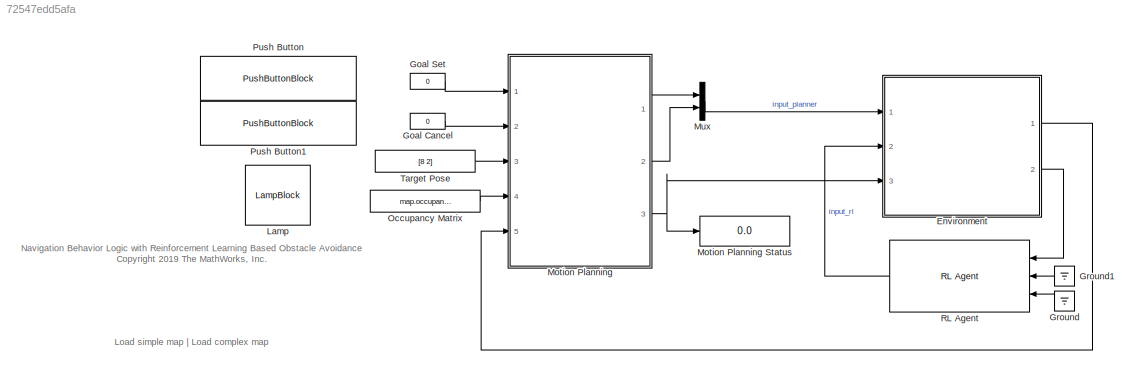
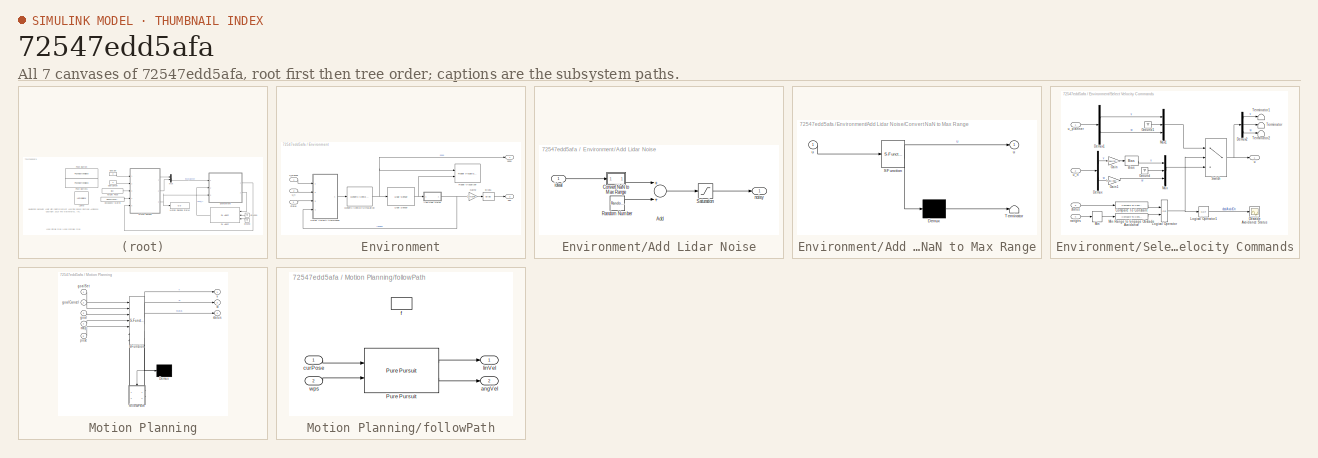
[diagram: thumbnail index - all 7 canvases of the model, root first then tree order]
MODEL slx_72547edd5afa
KIND model
CONFIG AbsTol = auto
CONFIG EnableMultiTasking = off
CONFIG FixedStep = auto
CONFIG InitFcn = close all;\nclear showPath;\nlidarNoiseSeeds = randi(intmax,size(scanAngles));
CONFIG MaxStep = auto
CONFIG MinStep = auto
CONFIG PreLoadFcn = rlMobileRobotParams;
CONFIG RelTol = 1e-3
CONFIG SampleTimeConstraint = Unconstrained
CONFIG Solver = ode23t
CONFIG SolverName = ode23t
CONFIG StartTime = 0.0
CONFIG StopTime = inf
WORKSPACE source: mxarray member
WORKSPACE mapForSim: object (value not decoded)
WORKSPACE occGrid: robotics.BinaryOccupancyGrid (value not decoded)
BLOCK [SubSystem] Environment
  Ports = [3, 2]
  RequestExecContextInheritance = off
BLOCK [SubSystem] Environment/Add Lidar Noise
  Ports = [1, 1]
  RequestExecContextInheritance = off
BLOCK [Sum] Environment/Add Lidar Noise/Add
  InputSameDT = off
  OutDataTypeStr = Inherit: Inherit via internal rule
  Ports = [2, 1]
  SaturateOnIntegerOverflow = off
BLOCK [SubSystem] Environment/Add Lidar Noise/Convert NaN to Max Range
  ErrorFcn = Stateflow.Translate.translate
  PermitHierarchicalResolution = ExplicitOnly
  Ports = [1, 1]
  RequestExecContextInheritance = off
  SFBlockType = MATLAB Function
  TreatAsAtomicUnit = on
BLOCK [Demux] Environment/Add Lidar Noise/Convert NaN to Max Range/ Demux 
  Outputs = 1
  Ports = [1, 1]
BLOCK [S-Function] Environment/Add Lidar Noise/Convert NaN to Max Range/ SFunction 
  EnableBusSupport = on
  FunctionName = sf_sfun
  Parameters = maxRange
  PortCounts = [1 2]
  Ports = [1, 2]
  SFcnIsStateOwnerBlock = off
  SFunctionDeploymentMode = off
  Tag = Stateflow S-Function 2
BLOCK [Terminator] Environment/Add Lidar Noise/Convert NaN to Max Range/ Terminator 
BLOCK [Outport] Environment/Add Lidar Noise/Convert NaN to Max Range/u
  IconDisplay = Port number
  VectorParamsAs1DForOutWhenUnconnected = off
BLOCK [Inport] Environment/Add Lidar Noise/Convert NaN to Max Range/u 
  IconDisplay = Port number
BLOCK [RandomNumber] Environment/Add Lidar Noise/Random Number
  SampleTime = sampleTime
  Seed = lidarNoiseSeeds
  Variance = lidarNoiseVariance
BLOCK [Saturate] Environment/Add Lidar Noise/Saturation
  InputPortMap = u0
  LowerLimit = 0
  Ports = [1, 1]
  UpperLimit = inf
BLOCK [Inport] Environment/Add Lidar Noise/ideal
  IconDisplay = Port number
BLOCK [Outport] Environment/Add Lidar Noise/noisy
  IconDisplay = Port number
BLOCK [Bias] Environment/Bias1
  Bias = -1
  SaturateOnIntegerOverflow = off
BLOCK [Gain] Environment/Gain2
  Gain = 2/maxRange
  OutDataTypeStr = Inherit: Inherit via internal rule
  ParamDataTypeStr = Inherit: Inherit via internal rule
  SaturateOnIntegerOverflow = off
BLOCK [Reference] Environment/Generic Vehicle Simulation  REF=mobileRoboticsLib/Utilities/Generic Vehicle Simulation
  Ports = [1, 1]
  SourceBlock = mobileRoboticsLib/Utilities/Generic Vehicle Simulation
  SourceProductName = Mobile Robotics Simulation Library
  SourceType = Generic Vehicle Simulation
BLOCK [Reference] Environment/Lidar Sensor  REF=mobileRoboticsLib/Environments/Lidar Sensor
  Ports = [1, 1]
  SourceBlock = mobileRoboticsLib/Environments/Lidar Sensor
  SourceProductName = Ground Vehicles Library
  SourceType = LidarSensor
BLOCK [Reference] Environment/Robot Visualizer  REF=mobileRoboticsLib/Environments/Robot Visualizer
  Ports = [2]
  Priority = 99
  SourceBlock = mobileRoboticsLib/Environments/Robot Visualizer
  SourceProductName = Ground Vehicles Library
  SourceType = Visualizer2D
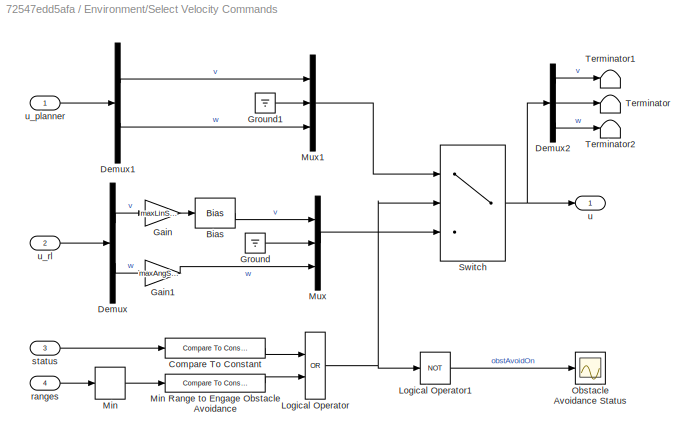
BLOCK [SubSystem] Environment/Select Velocity Commands
  Ports = [4, 1]
  RequestExecContextInheritance = off
BLOCK [Bias] Environment/Select Velocity Commands/Bias
  Bias = maxLinSpeed/2
  SaturateOnIntegerOverflow = off
BLOCK [Reference] Environment/Select Velocity Commands/Compare To Constant  REF=simulink/Logic and Bit
Operations/Compare
To Constant
  Ports = [1, 1]
  SourceBlock = simulink/Logic and Bit\nOperations/Compare\nTo Constant
  SourceProductBaseCode = SL
  SourceProductName = Simulink
  SourceType = Compare To Constant
BLOCK [Demux] Environment/Select Velocity Commands/Demux
  DisplayOption = bar
  Outputs = 2
  Ports = [1, 2]
BLOCK [Demux] Environment/Select Velocity Commands/Demux1
  DisplayOption = bar
  Outputs = 2
  Ports = [1, 2]
BLOCK [Demux] Environment/Select Velocity Commands/Demux2
  DisplayOption = bar
  Outputs = 3
  Ports = [1, 3]
BLOCK [Gain] Environment/Select Velocity Commands/Gain
  Gain = maxLinSpeed/2
  OutDataTypeStr = Inherit: Inherit via internal rule
  ParamDataTypeStr = Inherit: Inherit via internal rule
  SaturateOnIntegerOverflow = off
BLOCK [Gain] Environment/Select Velocity Commands/Gain1
  Gain = maxAngSpeed
  OutDataTypeStr = Inherit: Inherit via internal rule
  ParamDataTypeStr = Inherit: Inherit via internal rule
  SaturateOnIntegerOverflow = off
BLOCK [Ground] Environment/Select Velocity Commands/Ground
BLOCK [Ground] Environment/Select Velocity Commands/Ground1
BLOCK [Logic] Environment/Select Velocity Commands/Logical Operator
  AllPortsSameDT = off
  Operator = OR
  OutDataTypeStr = boolean
  Ports = [2, 1]
BLOCK [Logic] Environment/Select Velocity Commands/Logical Operator1
  AllPortsSameDT = off
  Operator = NOT
  OutDataTypeStr = boolean
  Ports = [1, 1]
BLOCK [MinMax] Environment/Select Velocity Commands/Min
  InputSameDT = off
  Ports = [1, 1]
  SaturateOnIntegerOverflow = off
BLOCK [Reference] Environment/Select Velocity Commands/Min Range to Engage Obstacle Avoidance  REF=simulink/Logic and Bit
Operations/Compare
To Constant
  Ports = [1, 1]
  SourceBlock = simulink/Logic and Bit\nOperations/Compare\nTo Constant
  SourceProductBaseCode = SL
  SourceProductName = Simulink
  SourceType = Compare To Constant
BLOCK [Mux] Environment/Select Velocity Commands/Mux
  DisplayOption = bar
  Inputs = 3
  Ports = [3, 1]
BLOCK [Mux] Environment/Select Velocity Commands/Mux1
  DisplayOption = bar
  Inputs = 3
  Ports = [3, 1]
BLOCK [Scope] Environment/Select Velocity Commands/Obstacle Avoidance Status
  Floating = off
  NumInputPorts = 1
  Ports = [1]
  ScopeSpecificationString = Simulink.scopes.TimeScopeBlockCfg('CurrentConfiguration', extmgr.ConfigurationSet(extmgr.Configuration('Core','General UI',true),extmgr.Configuration('Core','Source UI',true),extmgr.Configuration('Sources','WiredSimulink',true),extmgr.Configuration('Visuals','Time Domain',true,'SerializedDisplays',{struct('MinYLimReal','-0.2','MaxYLimReal','1.2','YLabelReal','','MinYLimMag','0','MaxYLimMag','10','...<+1345ch>
BLOCK [Switch] Environment/Select Velocity Commands/Switch
  Criteria = u2 ~= 0
  InputSameDT = off
  SaturateOnIntegerOverflow = off
  Threshold = 1
BLOCK [Terminator] Environment/Select Velocity Commands/Terminator
BLOCK [Terminator] Environment/Select Velocity Commands/Terminator1
BLOCK [Terminator] Environment/Select Velocity Commands/Terminator2
BLOCK [Inport] Environment/Select Velocity Commands/ranges
  IconDisplay = Port number
  Port = 4
BLOCK [Inport] Environment/Select Velocity Commands/status
  IconDisplay = Port number
  Port = 3
BLOCK [Outport] Environment/Select Velocity Commands/u
  IconDisplay = Port number
BLOCK [Inport] Environment/Select Velocity Commands/u_planner
  IconDisplay = Port number
BLOCK [Inport] Environment/Select Velocity Commands/u_rl
  IconDisplay = Port number
  Port = 2
BLOCK [Outport] Environment/obs
  IconDisplay = Port number
  Port = 2
  VectorParamsAs1DForOutWhenUnconnected = off
BLOCK [Outport] Environment/pose
  IconDisplay = Port number
  VectorParamsAs1DForOutWhenUnconnected = off
BLOCK [Inport] Environment/status
  IconDisplay = Port number
  Port = 3
BLOCK [Inport] Environment/u_planner
  IconDisplay = Port number
BLOCK [Inport] Environment/u_rl
  IconDisplay = Port number
  Port = 2
BLOCK [Constant] Goal Cancel
  Value = 0
BLOCK [Constant] Goal Set
  Value = 0
BLOCK [Ground] Ground
BLOCK [Ground] Ground1
BLOCK [LampBlock] Lamp
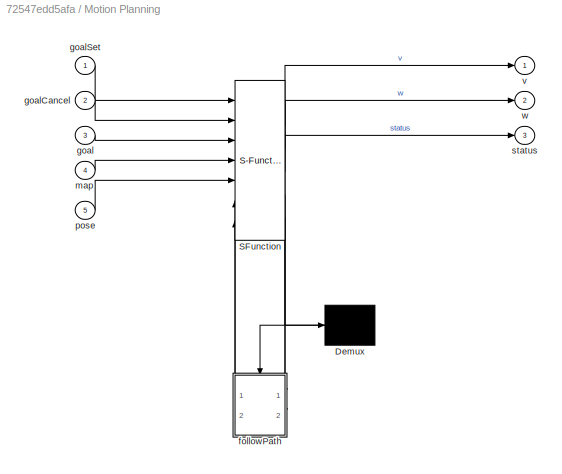
BLOCK [SubSystem] Motion Planning
  BlockKeywords = __PRM__SERIALIZED__DATA__:Stateflow Chart,Stateflow Diagram
  ErrorFcn = Stateflow.Translate.translate
  PermitHierarchicalResolution = ExplicitOnly
  Ports = [5, 3]
  RequestExecContextInheritance = off
  SFBlockType = Chart
  TreatAsAtomicUnit = on
BLOCK [Display] Motion Planning Status
  Decimation = 1
  Ports = [1]
BLOCK [Demux] Motion Planning/ Demux 
  Outputs = 1
  Ports = [1, 1]
BLOCK [S-Function] Motion Planning/ SFunction 
  EnableBusSupport = on
  FunctionName = sf_sfun
  Parameters = goalCheckDistance,prmConnectionDistance,prmNumNodes
  PortCounts = [7 6]
  Ports = [7, 6]
  SFcnIsStateOwnerBlock = off
  SFunctionDeploymentMode = off
  Tag = Stateflow S-Function 3
BLOCK [SubSystem] Motion Planning/followPath
  Ports = [2, 2, 0, 1]
  PreDeleteFcn = Stateflow.SLINSF.SimulinkMan.removePreDeleteFcn
  RequestExecContextInheritance = off
  UndoDeleteFcn = Stateflow.SLINSF.SimulinkMan.restorePreDeleteFcn
BLOCK [Reference] Motion Planning/followPath/Pure Pursuit  REF=robotalgslib/Pure Pursuit
  Ports = [2, 2]
  SourceBlock = robotalgslib/Pure Pursuit
  SourceProductBaseCode = RO
  SourceProductName = Robotics System Toolbox
  SourceType = nav.slalgs.internal.PurePursuit
BLOCK [Outport] Motion Planning/followPath/angVel
  IconDisplay = Port number
  Port = 2
BLOCK [Inport] Motion Planning/followPath/curPose
  IconDisplay = Port number
  OutDataTypeStr = double
  PortDimensions = 3
  SignalType = real
  VarSizeSig = No
BLOCK [TriggerPort] Motion Planning/followPath/f
  CopyFcn = Stateflow.SLINSF.SimulinkMan.removeBlockPreDeleteFcn
  Ports = []
  PreDeleteFcn = Stateflow.SLINSF.SimulinkMan.unsafePredeleteFcn
  StatesWhenEnabling = held
  TriggerType = function-call
  VariantControl = (inherit)
BLOCK [Outport] Motion Planning/followPath/linVel
  IconDisplay = Port number
BLOCK [Inport] Motion Planning/followPath/wps
  IconDisplay = Port number
  OutDataTypeStr = double
  Port = 2
  PortDimensions = [prmMaxWaypoints 2]
  SignalType = real
  VarSizeSig = Yes
BLOCK [Inport] Motion Planning/goal
  IconDisplay = Port number
  Port = 3
BLOCK [Inport] Motion Planning/goalCancel
  IconDisplay = Port number
  Port = 2
BLOCK [Inport] Motion Planning/goalSet
  IconDisplay = Port number
BLOCK [Inport] Motion Planning/map
  IconDisplay = Port number
  Port = 4
BLOCK [Inport] Motion Planning/pose
  IconDisplay = Port number
  Port = 5
BLOCK [Outport] Motion Planning/status
  IconDisplay = Port number
  Port = 3
BLOCK [Outport] Motion Planning/v
  IconDisplay = Port number
BLOCK [Outport] Motion Planning/w
  IconDisplay = Port number
  Port = 2
BLOCK [Mux] Mux
  DisplayOption = bar
  Inputs = 2
  Ports = [2, 1]
BLOCK [Constant] Occupancy Matrix
  Value = map.occupancyMatrix
BLOCK [PushButtonBlock] Push Button
  ButtonText = Set Nav Goal
BLOCK [PushButtonBlock] Push Button1
  ButtonText = Cancel Nav Goal
BLOCK [Reference] RL Agent  REF=rllib/RL Agent
  Ports = [3, 1]
  SourceBlock = rllib/RL Agent
  SourceProductBaseCode = RL
  SourceProductName = Reinforcement Learning Toolbox
  SourceType = RL Agent
BLOCK [Constant] Target Pose
  Value = [8 2]
  VectorParams1D = off
ANNOTATION (root): Load simple map | Load complex map
ANNOTATION (root): Navigation Behavior Logic with Reinforcement Learning Based Obstacle Avoidance <copyright redacted>
LINE Environment/Add Lidar Noise/Add:1 -> Environment/Add Lidar Noise/Saturation:1
LINE Environment/Add Lidar Noise/Convert NaN to Max Range:1 -> Environment/Add Lidar Noise/Add:1
LINE Environment/Add Lidar Noise/Random Number:1 -> Environment/Add Lidar Noise/Add:2
LINE Environment/Add Lidar Noise/Saturation:1 -> Environment/Add Lidar Noise/noisy:1
LINE Environment/Add Lidar Noise/ideal:1 -> Environment/Add Lidar Noise/Convert NaN to Max Range:1
NET Environment/Add Lidar Noise:1 -> Environment/Gain2:1, Environment/Select Velocity Commands:4
LINE Environment/Bias1:1 -> Environment/obs:1
LINE Environment/Gain2:1 -> Environment/Bias1:1
NET Environment/Generic Vehicle Simulation:1 -> Environment/Lidar Sensor:1, Environment/Robot Visualizer:1, Environment/pose:1
NET Environment/Lidar Sensor:1 -> Environment/Add Lidar Noise:1, Environment/Robot Visualizer:2
LINE Environment/Select Velocity Commands/Bias:1 -> Environment/Select Velocity Commands/Mux:1
LINE Environment/Select Velocity Commands/Compare To Constant:1 -> Environment/Select Velocity Commands/Logical Operator:1
LINE Environment/Select Velocity Commands/Demux1:1 -> Environment/Select Velocity Commands/Mux1:1
LINE Environment/Select Velocity Commands/Demux1:2 -> Environment/Select Velocity Commands/Mux1:3
LINE Environment/Select Velocity Commands/Demux2:1 -> Environment/Select Velocity Commands/Terminator1:1
LINE Environment/Select Velocity Commands/Demux2:2 -> Environment/Select Velocity Commands/Terminator:1
LINE Environment/Select Velocity Commands/Demux2:3 -> Environment/Select Velocity Commands/Terminator2:1
LINE Environment/Select Velocity Commands/Demux:1 -> Environment/Select Velocity Commands/Gain:1
LINE Environment/Select Velocity Commands/Demux:2 -> Environment/Select Velocity Commands/Gain1:1
LINE Environment/Select Velocity Commands/Gain1:1 -> Environment/Select Velocity Commands/Mux:3
LINE Environment/Select Velocity Commands/Gain:1 -> Environment/Select Velocity Commands/Bias:1
LINE Environment/Select Velocity Commands/Ground1:1 -> Environment/Select Velocity Commands/Mux1:2
LINE Environment/Select Velocity Commands/Ground:1 -> Environment/Select Velocity Commands/Mux:2
LINE Environment/Select Velocity Commands/Logical Operator1:1 -> Environment/Select Velocity Commands/Obstacle Avoidance Status:1
NET Environment/Select Velocity Commands/Logical Operator:1 -> Environment/Select Velocity Commands/Logical Operator1:1, Environment/Select Velocity Commands/Switch:2
LINE Environment/Select Velocity Commands/Min Range to Engage Obstacle Avoidance:1 -> Environment/Select Velocity Commands/Logical Operator:2
LINE Environment/Select Velocity Commands/Min:1 -> Environment/Select Velocity Commands/Min Range to Engage Obstacle Avoidance:1
LINE Environment/Select Velocity Commands/Mux1:1 -> Environment/Select Velocity Commands/Switch:1
LINE Environment/Select Velocity Commands/Mux:1 -> Environment/Select Velocity Commands/Switch:3
NET Environment/Select Velocity Commands/Switch:1 -> Environment/Select Velocity Commands/Demux2:1, Environment/Select Velocity Commands/u:1
LINE Environment/Select Velocity Commands/ranges:1 -> Environment/Select Velocity Commands/Min:1
LINE Environment/Select Velocity Commands/status:1 -> Environment/Select Velocity Commands/Compare To Constant:1
LINE Environment/Select Velocity Commands/u_planner:1 -> Environment/Select Velocity Commands/Demux1:1
LINE Environment/Select Velocity Commands/u_rl:1 -> Environment/Select Velocity Commands/Demux:1
LINE Environment/Select Velocity Commands:1 -> Environment/Generic Vehicle Simulation:1
LINE Environment/status:1 -> Environment/Select Velocity Commands:3
LINE Environment/u_planner:1 -> Environment/Select Velocity Commands:1
LINE Environment/u_rl:1 -> Environment/Select Velocity Commands:2
LINE Environment:1 -> Motion Planning:5
LINE Environment:2 -> RL Agent:1
LINE Goal Cancel:1 -> Motion Planning:2
LINE Goal Set:1 -> Motion Planning:1
LINE Ground1:1 -> RL Agent:2
LINE Ground:1 -> RL Agent:3
LINE Motion Planning:1 -> Mux:1
LINE Motion Planning:2 -> Mux:2
NET Motion Planning:3 -> Environment:3, Motion Planning Status:1
LINE Mux:1 -> Environment:1
LINE Occupancy Matrix:1 -> Motion Planning:4
LINE RL Agent:1 -> Environment:2
LINE Target Pose:1 -> Motion Planning:3
note: NET lines group one-source signal fan-out (src -> all destinations, sorted); 1:1 wires keep LINE
CHART Environment/Add Lidar Noise/Convert NaN to Max Range states=1 transitions=1
  STATE_LABEL 'eML_blk_kernel()'
  STATE_LABEL 'SCRIPT:\nfunction u = removeNans(u,maxRange)\n\nu(isnan(u)) = maxRange;'
CHART Motion Planning states=5 transitions=12
  STATE_LABEL 'ExecuteMotionPlan\n'
  STATE_LABEL '{pathFound = false;}'
  STATE_LABEL '[pathFound]'
  STATE_LABEL '% Plan a path\n{\n[waypoints,pathFound] = ... \ncomputePath(goal,pose,map);\n}'
  STATE_LABEL '% If a path exists, follow it\n{\n[v,w] = followPath(pose,waypoints);\nstatus = MotionPlanning.FOLLOWING;\n}'
  STATE_LABEL 'Standby\nen:\nv = 0;\nw = 0;'
  STATE_LABEL 'done = isGoalReached'
  STATE_LABEL '{\ndist = sqrt((goal(1)-pose(1))^2 + (goal(2)-pose(2))^2);\ndone = (dist <= goalCheckDistance);\n}'
  STATE_LABEL '[wps,found] = computePath(tgtPose,curPose,occMat)'
  STATE_LABEL "SCRIPT:\nfunction [wps,found] = computePath(tgtPose,curPose,occMat)\n\n% Initialize path planner on initialization\ncoder.extrinsic('showPath')\npersistent planner firstTime\nif isempty(planner)\n    occMap = occupancyMap(occMat,2);\n    % inflate(occMap,0.2); % No inflation in this example, obstacle avoidance handles it\n    planner = mobileRobotPRM(occMap);\n    planner.ConnectionDistance = prmConnectionD...<+998ch>"
  STATE_LABEL '[linVel,angVel] = followPath(curPose,wps)'
